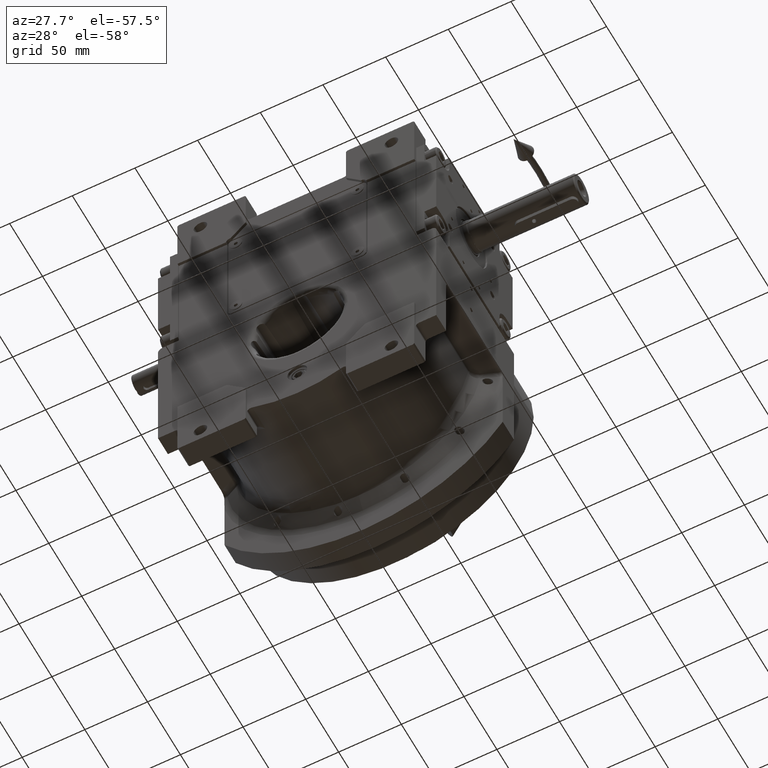
[diagram: clean part render]
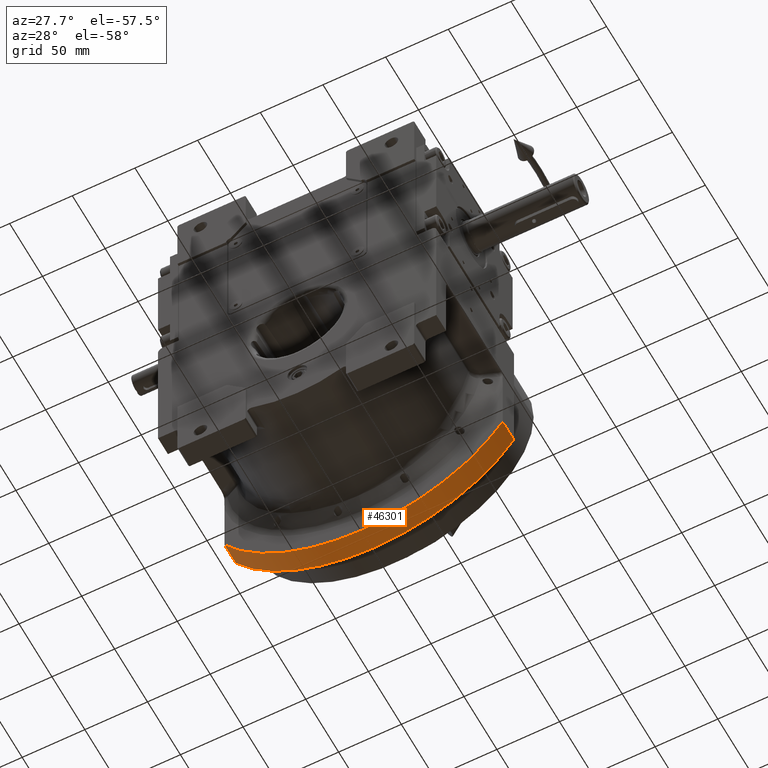
[diagram: same view with one face highlighted and labeled with its STEP entity id]
A machine part, auxiliary view. The second image highlights one B-rep face of the part: STEP entity #46301.
In plain terms, the highlighted cylindrical surface (partial cylindrical patch) has radius 132 mm, axis along (0, -1, 0).
Its self-contained STEP definition (entity closure, byte-faithful):
#148 = CARTESIAN_POINT ( 'NONE',  ( 7.105427357600998703E-15, 64.50000000000000000, 0.000000000000000000 ) ) ;
#4438 = VECTOR ( 'NONE', #65009, 1000.000000000000000 ) ;
#6753 = VERTEX_POINT ( 'NONE', #67785 ) ;
#9048 = CARTESIAN_POINT ( 'NONE',  ( 111.0000000000000000, 64.50000000000000000, -71.43528539874399996 ) ) ;
#11942 = LINE ( 'NONE', #17502, #4438 ) ;
#12255 = CARTESIAN_POINT ( 'NONE',  ( -4.517455316885850268E-28, -53.50000000000000000, 0.000000000000000000 ) ) ;
#17502 = CARTESIAN_POINT ( 'NONE',  ( -111.0000000000000000, 47.50000000000000000, -71.43528539874399996 ) ) ;
#20166 = CARTESIAN_POINT ( 'NONE',  ( 0.000000000000000000, 47.50000000000000000, 4.263256414560599853E-14 ) ) ;
#22325 = VERTEX_POINT ( 'NONE', #9048 ) ;
#23351 = AXIS2_PLACEMENT_3D ( 'NONE', #20166, #40380, #52613 ) ;
#26276 = EDGE_LOOP ( 'NONE', ( #48792, #31273, #56023, #27959 ) ) ;
#27959 = ORIENTED_EDGE ( 'NONE', *, *, #29955, .T. ) ;
#28919 = CIRCLE ( 'NONE', #23351, 131.9999999999999716 ) ;
#29955 = EDGE_CURVE ( 'NONE', #56503, #6753, #28919, .T. ) ;
#30104 = DIRECTION ( 'NONE',  ( 0.000000000000000000, 1.000000000000000000, 8.359326303060000099E-16 ) ) ;
#31273 = ORIENTED_EDGE ( 'NONE', *, *, #55480, .F. ) ;
#33560 = DIRECTION ( 'NONE',  ( 0.000000000000000000, -1.000000000000000000, 0.000000000000000000 ) ) ;
#34648 = LINE ( 'NONE', #40218, #41289 ) ;
#34859 = CARTESIAN_POINT ( 'NONE',  ( -111.0000000000000000, 64.50000000000000000, -71.43528539874399996 ) ) ;
#40019 = CARTESIAN_POINT ( 'NONE',  ( 111.0000000000000000, 47.50000000000000000, -71.43528539874399996 ) ) ;
#40070 = EDGE_CURVE ( 'NONE', #56503, #22325, #34648, .T. ) ;
#40218 = CARTESIAN_POINT ( 'NONE',  ( 111.0000000000000000, 47.50000000000000000, -71.43528539874399996 ) ) ;
#40380 = DIRECTION ( 'NONE',  ( 0.000000000000000000, 1.000000000000000000, 0.000000000000000000 ) ) ;
#41289 = VECTOR ( 'NONE', #30104, 1000.000000000000000 ) ;
#42491 = AXIS2_PLACEMENT_3D ( 'NONE', #148, #42676, #63998 ) ;
#42676 = DIRECTION ( 'NONE',  ( 0.000000000000000000, 1.000000000000000000, 0.000000000000000000 ) ) ;
#43666 = DIRECTION ( 'NONE',  ( 1.000000000000000000, 0.000000000000000000, 0.000000000000000000 ) ) ;
#46301 = ADVANCED_FACE ( 'NONE', ( #55194 ), #60789, .T. ) ;
#48792 = ORIENTED_EDGE ( 'NONE', *, *, #53088, .T. ) ;
#49628 = VERTEX_POINT ( 'NONE', #34859 ) ;
#52613 = DIRECTION ( 'NONE',  ( 0.8409090909090902732, 0.000000000000000000, -0.5411764045359401809 ) ) ;
#53088 = EDGE_CURVE ( 'NONE', #6753, #49628, #11942, .T. ) ;
#55194 = FACE_OUTER_BOUND ( 'NONE', #26276, .T. ) ;
#55480 = EDGE_CURVE ( 'NONE', #22325, #49628, #62619, .T. ) ;
#56023 = ORIENTED_EDGE ( 'NONE', *, *, #40070, .F. ) ;
#56503 = VERTEX_POINT ( 'NONE', #40019 ) ;
#60789 = CYLINDRICAL_SURFACE ( 'NONE', #67592, 132.0000000000000000 ) ;
#62619 = CIRCLE ( 'NONE', #42491, 132.0000000000000853 ) ;
#63998 = DIRECTION ( 'NONE',  ( 0.8409090909090906063, 0.000000000000000000, -0.5411764045359397368 ) ) ;
#65009 = DIRECTION ( 'NONE',  ( 0.000000000000000000, 1.000000000000000000, 0.000000000000000000 ) ) ;
#67592 = AXIS2_PLACEMENT_3D ( 'NONE', #12255, #33560, #43666 ) ;
#67785 = CARTESIAN_POINT ( 'NONE',  ( -111.0000000000000000, 47.50000000000000000, -71.43528539874399996 ) ) ;